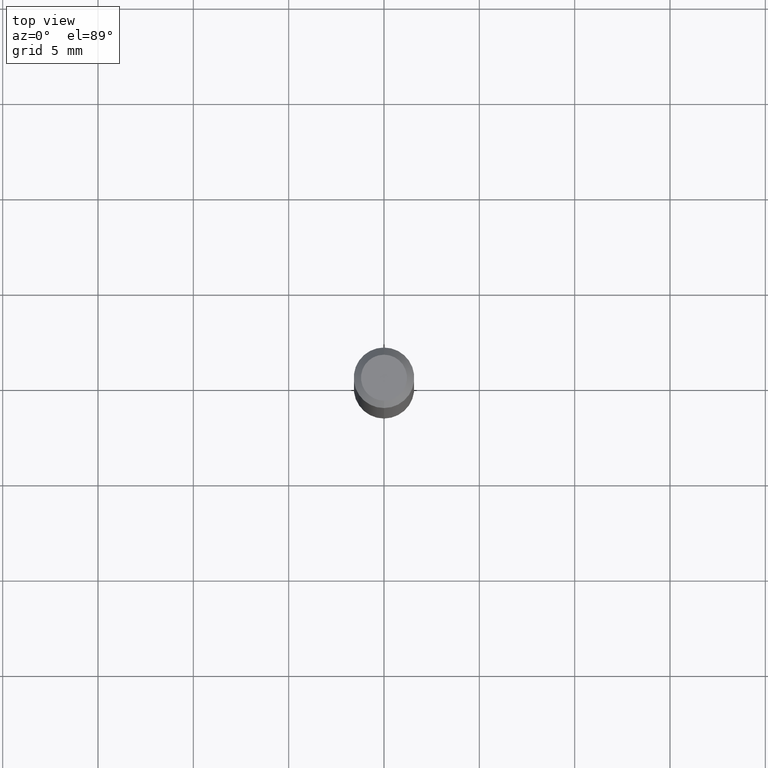
[diagram: clean part render]
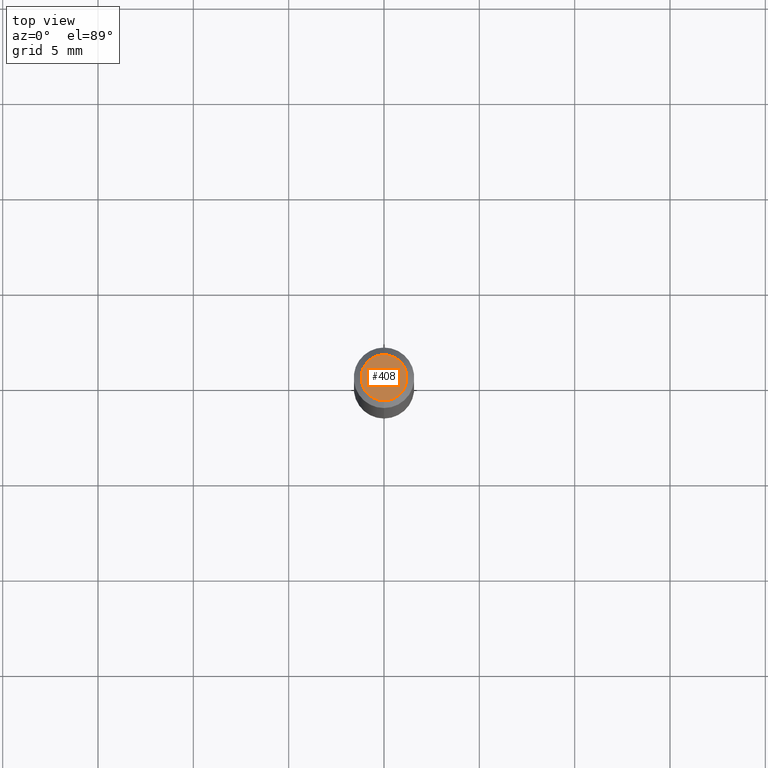
[diagram: same view with one face highlighted and labeled with its STEP entity id]
A machine part, top view. The second image highlights one B-rep face of the part: STEP entity #408.
In plain terms, the highlighted planar face has unit normal (0, -0, -1).
Its self-contained STEP definition (entity closure, byte-faithful):
#3 = DIRECTION ( 'NONE',  ( -2.447246345280827304E-29, 3.488935801686874341E-15, 1.000000000000000000 ) ) ;
#19 = AXIS2_PLACEMENT_3D ( 'NONE', #262, #511, #469 ) ;
#20 = AXIS2_PLACEMENT_3D ( 'NONE', #258, #290, #25 ) ;
#25 = DIRECTION ( 'NONE',  ( -6.982962677686265133E-15, -1.000000000000000000, 3.488935801686874735E-15 ) ) ;
#26 = EDGE_LOOP ( 'NONE', ( #405, #369 ) ) ;
#35 = CARTESIAN_POINT ( 'NONE',  ( -2.394837331708930478E-45, 3.414218483532660689E-31, 9.785844961325777061E-17 ) ) ;
#116 = PLANE ( 'NONE',  #19 ) ;
#226 = EDGE_CURVE ( 'NONE', #309, #458, #296, .T. ) ;
#258 = CARTESIAN_POINT ( 'NONE',  ( -2.394837331708930478E-45, 3.414218483532660689E-31, 9.785844961325777061E-17 ) ) ;
#262 = CARTESIAN_POINT ( 'NONE',  ( 3.316907271900979054E-16, 0.04750000000000004219, -1.167952257734977815E-16 ) ) ;
#290 = DIRECTION ( 'NONE',  ( -2.447246345280827304E-29, 3.488935801686874341E-15, 1.000000000000000000 ) ) ;
#293 = CARTESIAN_POINT ( 'NONE',  ( 3.840629472727450339E-16, 0.04750000000000004219, -6.786600096686892081E-17 ) ) ;
#296 = CIRCLE ( 'NONE', #20, 0.04750000000000004219 ) ;
#309 = VERTEX_POINT ( 'NONE', #360 ) ;
#336 = DIRECTION ( 'NONE',  ( -6.982962677686265133E-15, -1.000000000000000000, 3.488935801686874735E-15 ) ) ;
#346 = FACE_OUTER_BOUND ( 'NONE', #26, .T. ) ;
#360 = CARTESIAN_POINT ( 'NONE',  ( -3.773273898774342241E-16, -0.04750000000000004219, 2.635829001933844250E-16 ) ) ;
#369 = ORIENTED_EDGE ( 'NONE', *, *, #226, .T. ) ;
#389 = EDGE_CURVE ( 'NONE', #458, #309, #442, .T. ) ;
#405 = ORIENTED_EDGE ( 'NONE', *, *, #389, .T. ) ;
#408 = ADVANCED_FACE ( 'NONE', ( #346 ), #116, .F. ) ;
#442 = CIRCLE ( 'NONE', #462, 0.04750000000000004219 ) ;
#458 = VERTEX_POINT ( 'NONE', #293 ) ;
#462 = AXIS2_PLACEMENT_3D ( 'NONE', #35, #3, #336 ) ;
#469 = DIRECTION ( 'NONE',  ( 6.982962677686265922E-15, 1.000000000000000000, -3.488935801686874341E-15 ) ) ;
#511 = DIRECTION ( 'NONE',  ( 2.447246345280826743E-29, -3.488935801686874341E-15, -1.000000000000000000 ) ) ;